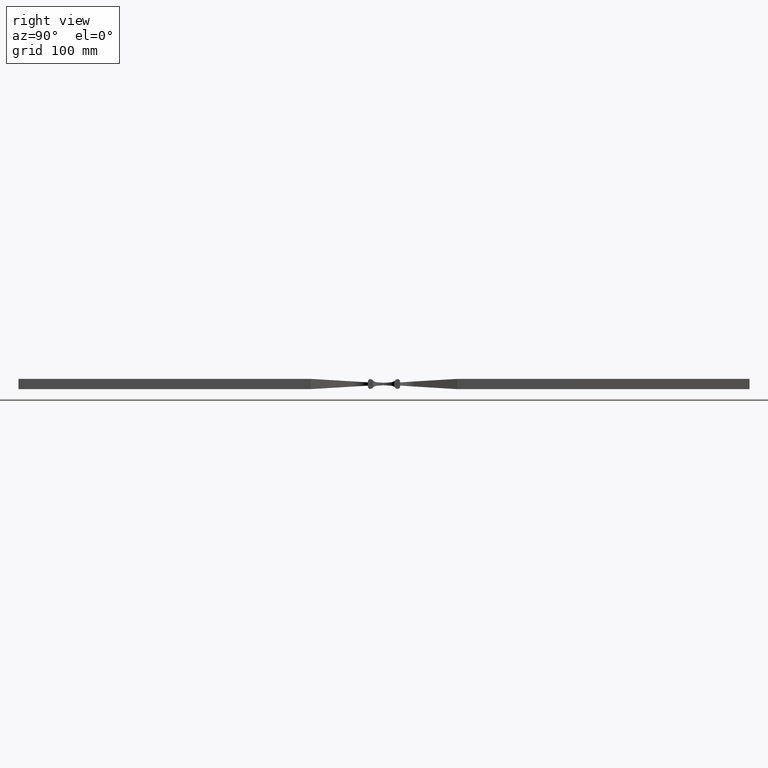
[diagram: clean part render]
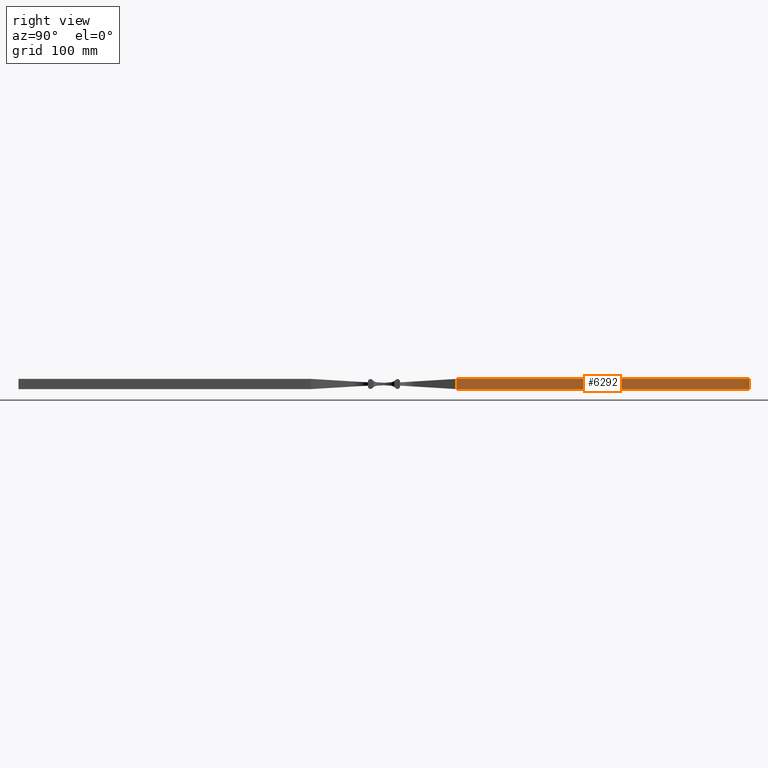
[diagram: same view with one face highlighted and labeled with its STEP entity id]
A machine part, right view. The second image highlights one B-rep face of the part: STEP entity #6292.
In plain terms, the highlighted planar face has unit normal (-1, 0, 0).
Its self-contained STEP definition (entity closure, byte-faithful):
#276 = EDGE_LOOP ( 'NONE', ( #1088, #5692, #11583, #356 ) ) ;
#356 = ORIENTED_EDGE ( 'NONE', *, *, #10339, .F. ) ;
#949 = LINE ( 'NONE', #6604, #5988 ) ;
#1088 = ORIENTED_EDGE ( 'NONE', *, *, #5010, .F. ) ;
#1373 = AXIS2_PLACEMENT_3D ( 'NONE', #9908, #6359, #9108 ) ;
#1673 = CARTESIAN_POINT ( 'NONE',  ( 6.999999999999998224, 1019.798989873223377, -7.000000000000000000 ) ) ;
#1704 = DIRECTION ( 'NONE',  ( -0.000000000000000000, -1.000000000000000000, -0.000000000000000000 ) ) ;
#1770 = VECTOR ( 'NONE', #11878, 1000.000000000000000 ) ;
#1855 = CARTESIAN_POINT ( 'NONE',  ( 6.999999999999998224, 500.0000000000000000, -7.000000000000000000 ) ) ;
#2531 = CARTESIAN_POINT ( 'NONE',  ( 7.000000000000000888, 100.0000000000000000, -6.999999999999999112 ) ) ;
#2785 = VERTEX_POINT ( 'NONE', #6057 ) ;
#2881 = VECTOR ( 'NONE', #5504, 1000.000000000000000 ) ;
#3019 = LINE ( 'NONE', #1673, #10496 ) ;
#4289 = CARTESIAN_POINT ( 'NONE',  ( 7.000000000000000888, 100.0000000000000000, 6.999999999999999112 ) ) ;
#5010 = EDGE_CURVE ( 'NONE', #7340, #2785, #11075, .T. ) ;
#5504 = DIRECTION ( 'NONE',  ( -1.239088197126290817E-16, 0.000000000000000000, -1.000000000000000000 ) ) ;
#5576 = CARTESIAN_POINT ( 'NONE',  ( 7.000000000000000000, 1019.798989873223377, 7.000000000000000000 ) ) ;
#5692 = ORIENTED_EDGE ( 'NONE', *, *, #10864, .T. ) ;
#5725 = EDGE_CURVE ( 'NONE', #7077, #6712, #949, .T. ) ;
#5808 = LINE ( 'NONE', #5576, #1770 ) ;
#5988 = VECTOR ( 'NONE', #6051, 1000.000000000000000 ) ;
#6051 = DIRECTION ( 'NONE',  ( -1.239088197126290817E-16, -0.000000000000000000, -1.000000000000000000 ) ) ;
#6057 = CARTESIAN_POINT ( 'NONE',  ( 6.999999999999998224, 500.0000000000000000, -7.000000000000000000 ) ) ;
#6292 = ADVANCED_FACE ( 'NONE', ( #6989 ), #9943, .F. ) ;
#6359 = DIRECTION ( 'NONE',  ( -1.000000000000000000, 0.000000000000000000, 1.239088197126290817E-16 ) ) ;
#6604 = CARTESIAN_POINT ( 'NONE',  ( 6.999999999999998224, 100.0000000000000000, -7.000000000000000000 ) ) ;
#6712 = VERTEX_POINT ( 'NONE', #2531 ) ;
#6989 = FACE_OUTER_BOUND ( 'NONE', #276, .T. ) ;
#7077 = VERTEX_POINT ( 'NONE', #4289 ) ;
#7340 = VERTEX_POINT ( 'NONE', #9408 ) ;
#9108 = DIRECTION ( 'NONE',  ( 1.239088197126290817E-16, 0.000000000000000000, 1.000000000000000000 ) ) ;
#9408 = CARTESIAN_POINT ( 'NONE',  ( 6.999999999999999112, 500.0000000000000000, 7.000000000000000000 ) ) ;
#9908 = CARTESIAN_POINT ( 'NONE',  ( 6.999999999999998224, 1019.798989873223377, -7.000000000000000000 ) ) ;
#9943 = PLANE ( 'NONE',  #1373 ) ;
#10339 = EDGE_CURVE ( 'NONE', #2785, #6712, #3019, .T. ) ;
#10496 = VECTOR ( 'NONE', #1704, 1000.000000000000000 ) ;
#10864 = EDGE_CURVE ( 'NONE', #7340, #7077, #5808, .T. ) ;
#11075 = LINE ( 'NONE', #1855, #2881 ) ;
#11583 = ORIENTED_EDGE ( 'NONE', *, *, #5725, .T. ) ;
#11878 = DIRECTION ( 'NONE',  ( -0.000000000000000000, -1.000000000000000000, -0.000000000000000000 ) ) ;